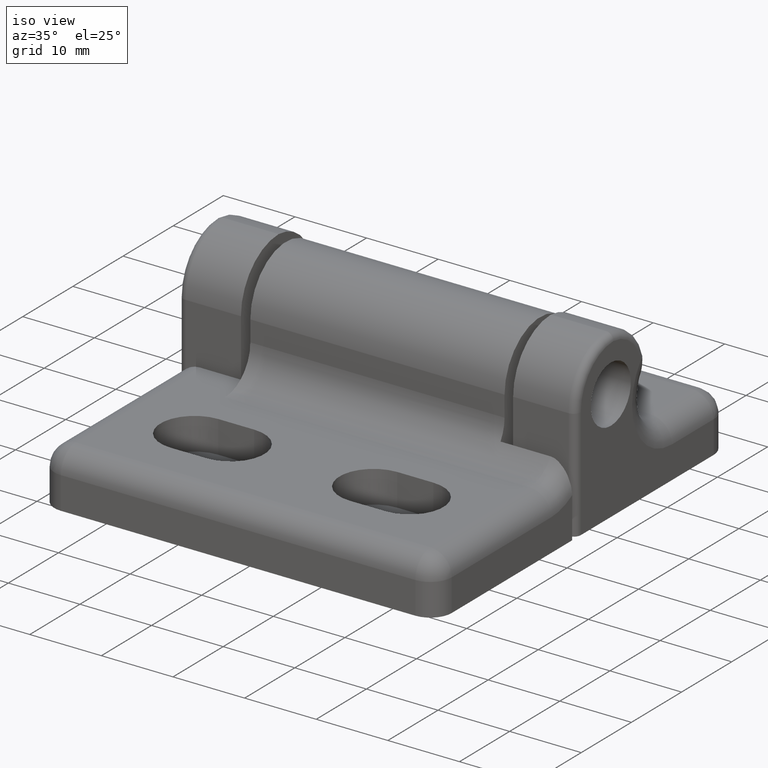
[diagram: clean part render]
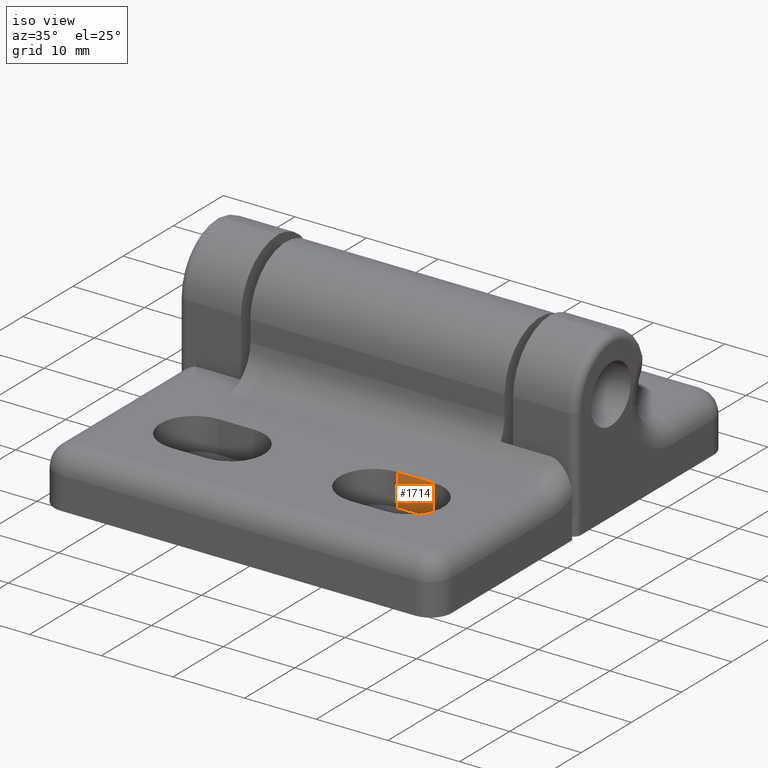
[diagram: same view with one face highlighted and labeled with its STEP entity id]
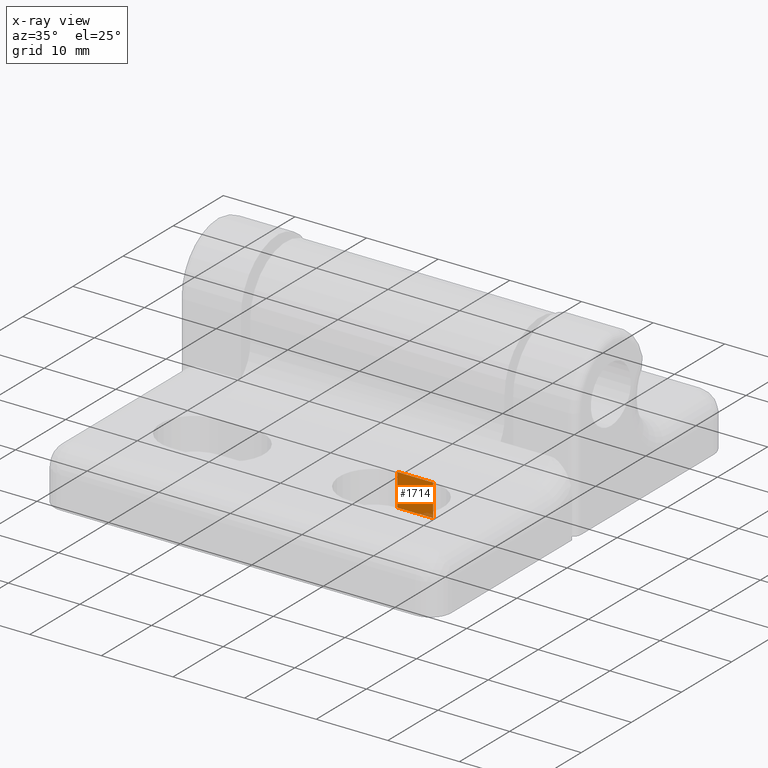
[diagram: x-ray of the same camera — body ghosted, the highlighted face saturated]
A machine part, iso view. The second image highlights one B-rep face of the part: STEP entity #1714.
The next image is the same camera in x-ray: the body ghosted, the highlighted face saturated — about 3% of this face is hidden behind the body in this view.
In plain terms, the highlighted planar face has unit normal (0, 1, -0).
Its self-contained STEP definition (entity closure, byte-faithful):
#67=PLANE('',#1846);
#137=LINE('',#2613,#280);
#166=LINE('',#2699,#309);
#167=LINE('',#2703,#310);
#168=LINE('',#2704,#311);
#280=VECTOR('',#2059,5.00000000000001);
#309=VECTOR('',#2148,4.5);
#310=VECTOR('',#2153,4.5);
#311=VECTOR('',#2154,5.00000000000001);
#472=FACE_OUTER_BOUND('',#577,.T.);
#577=EDGE_LOOP('',(#1303,#1304,#1305,#1306));
#782=VERTEX_POINT('',#2607);
#784=VERTEX_POINT('',#2611);
#811=VERTEX_POINT('',#2698);
#812=VERTEX_POINT('',#2702);
#956=EDGE_CURVE('',#782,#784,#137,.T.);
#998=EDGE_CURVE('',#811,#782,#166,.T.);
#1000=EDGE_CURVE('',#812,#784,#167,.T.);
#1001=EDGE_CURVE('',#811,#812,#168,.T.);
#1303=ORIENTED_EDGE('',*,*,#956,.T.);
#1304=ORIENTED_EDGE('',*,*,#1000,.F.);
#1305=ORIENTED_EDGE('',*,*,#1001,.F.);
#1306=ORIENTED_EDGE('',*,*,#998,.T.);
#1714=ADVANCED_FACE('',(#472),#67,.F.);
#1846=AXIS2_PLACEMENT_3D('',#2701,#2151,#2152);
#2059=DIRECTION('',(-1.,0.,0.));
#2148=DIRECTION('',(0.,0.,1.));
#2151=DIRECTION('center_axis',(0.,1.,0.));
#2152=DIRECTION('ref_axis',(0.,0.,1.));
#2153=DIRECTION('',(0.,0.,1.));
#2154=DIRECTION('',(-1.,0.,0.));
#2607=CARTESIAN_POINT('',(25.,4.75,7.5));
#2611=CARTESIAN_POINT('',(20.,4.75,7.5));
#2613=CARTESIAN_POINT('',(25.,4.75,7.5));
#2698=CARTESIAN_POINT('',(25.,4.75,3.));
#2699=CARTESIAN_POINT('',(25.,4.75,3.));
#2701=CARTESIAN_POINT('Origin',(25.25,4.75,7.725));
#2702=CARTESIAN_POINT('',(20.,4.75,3.));
#2703=CARTESIAN_POINT('',(20.,4.75,3.));
#2704=CARTESIAN_POINT('',(25.,4.75,3.));